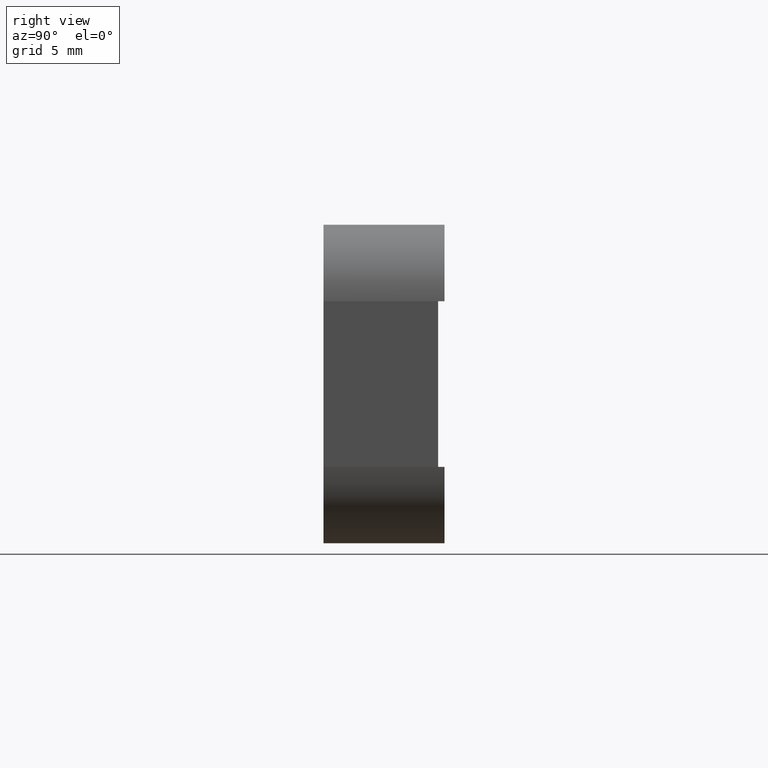
[diagram: clean part render]
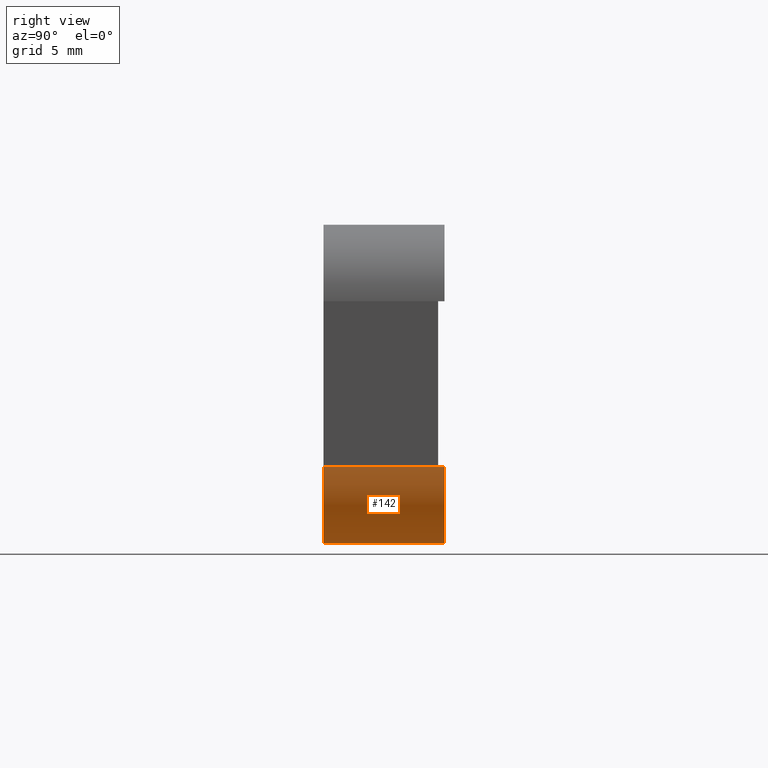
[diagram: same view with one face highlighted and labeled with its STEP entity id]
A machine part, right view. The second image highlights one B-rep face of the part: STEP entity #142.
In plain terms, the highlighted cylindrical surface (partial cylindrical patch) has radius 6 mm, axis along (0, -1, 0).
Its self-contained STEP definition (entity closure, byte-faithful):
#5 = EDGE_CURVE ( 'NONE', #703, #691, #655, .T. ) ;
#13 = EDGE_CURVE ( 'NONE', #698, #705, #647, .T. ) ;
#21 = EDGE_CURVE ( 'NONE', #700, #703, #636, .T. ) ;
#30 = AXIS2_PLACEMENT_3D ( 'NONE', #87, #112, #83 ) ;
#45 = AXIS2_PLACEMENT_3D ( 'NONE', #126, #123, #116 ) ;
#56 = EDGE_CURVE ( 'NONE', #705, #700, #593, .T. ) ;
#75 = EDGE_CURVE ( 'NONE', #691, #698, #568, .T. ) ;
#83 = DIRECTION ( 'NONE',  ( 1.156482317317871300E-015, 0.0000000000000000000, 1.000000000000000000 ) ) ;
#87 = CARTESIAN_POINT ( 'NONE',  ( 44.79999999999998300, 0.0000000000000000000, -19.00000000000000400 ) ) ;
#105 = CARTESIAN_POINT ( 'NONE',  ( 50.79999999999998300, 9.500000000000000000, -19.00000000000000700 ) ) ;
#108 = DIRECTION ( 'NONE',  ( -0.0000000000000000000, 1.000000000000000000, -0.0000000000000000000 ) ) ;
#112 = DIRECTION ( 'NONE',  ( -0.0000000000000000000, -1.000000000000000000, -0.0000000000000000000 ) ) ;
#116 = DIRECTION ( 'NONE',  ( 0.0000000000000000000, 0.0000000000000000000, 1.000000000000000000 ) ) ;
#123 = DIRECTION ( 'NONE',  ( 0.0000000000000000000, 1.000000000000000000, 0.0000000000000000000 ) ) ;
#126 = CARTESIAN_POINT ( 'NONE',  ( 44.79999999999998300, 9.500000000000000000, -19.00000000000000400 ) ) ;
#142 = ADVANCED_FACE ( 'NONE', ( #553 ), #544, .T. ) ;
#169 = CARTESIAN_POINT ( 'NONE',  ( 50.79999999999999700, 9.000000000000000000, -19.00000000000000400 ) ) ;
#175 = CARTESIAN_POINT ( 'NONE',  ( 50.79999999999998300, 9.500000000000000000, -19.00000000000000400 ) ) ;
#177 = CARTESIAN_POINT ( 'NONE',  ( 44.79999999999998300, 0.0000000000000000000, -25.00000000000000000 ) ) ;
#180 = CARTESIAN_POINT ( 'NONE',  ( 50.79999999999998300, 0.0000000000000000000, -19.00000000000000700 ) ) ;
#182 = CARTESIAN_POINT ( 'NONE',  ( 44.79999999999998300, 9.500000000000000000, -25.00000000000000000 ) ) ;
#230 = EDGE_LOOP ( 'NONE', ( #272, #271, #270, #269, #268 ) ) ;
#268 = ORIENTED_EDGE ( 'NONE', *, *, #13, .F. ) ;
#269 = ORIENTED_EDGE ( 'NONE', *, *, #56, .F. ) ;
#270 = ORIENTED_EDGE ( 'NONE', *, *, #21, .F. ) ;
#271 = ORIENTED_EDGE ( 'NONE', *, *, #5, .F. ) ;
#272 = ORIENTED_EDGE ( 'NONE', *, *, #75, .F. ) ;
#391 = DIRECTION ( 'NONE',  ( 0.0000000000000000000, -1.000000000000000000, 0.0000000000000000000 ) ) ;
#397 = CARTESIAN_POINT ( 'NONE',  ( 44.79999999999998300, 9.500000000000000000, -25.00000000000000000 ) ) ;
#401 = CARTESIAN_POINT ( 'NONE',  ( 50.79999999999999700, 9.000000000000000000, -19.00000000000000400 ) ) ;
#431 = DIRECTION ( 'NONE',  ( -0.0000000000000000000, 1.000000000000000000, -0.0000000000000000000 ) ) ;
#454 = DIRECTION ( 'NONE',  ( 0.0000000000000000000, 0.0000000000000000000, -1.000000000000000000 ) ) ;
#471 = DIRECTION ( 'NONE',  ( 0.0000000000000000000, -1.000000000000000000, 0.0000000000000000000 ) ) ;
#487 = CARTESIAN_POINT ( 'NONE',  ( 44.79999999999998300, 9.500000000000000000, -19.00000000000000400 ) ) ;
#544 = CYLINDRICAL_SURFACE ( 'NONE', #764, 5.999999999999998200 ) ;
#553 = FACE_OUTER_BOUND ( 'NONE', #230, .T. ) ;
#566 = VECTOR ( 'NONE', #431, 1000.000000000000000 ) ;
#568 = LINE ( 'NONE', #401, #566 ) ;
#591 = VECTOR ( 'NONE', #391, 1000.000000000000000 ) ;
#593 = LINE ( 'NONE', #397, #591 ) ;
#636 = CIRCLE ( 'NONE', #30, 6.000000000000000000 ) ;
#647 = CIRCLE ( 'NONE', #45, 6.000000000000000000 ) ;
#654 = VECTOR ( 'NONE', #108, 1000.000000000000000 ) ;
#655 = LINE ( 'NONE', #105, #654 ) ;
#691 = VERTEX_POINT ( 'NONE', #169 ) ;
#698 = VERTEX_POINT ( 'NONE', #175 ) ;
#700 = VERTEX_POINT ( 'NONE', #177 ) ;
#703 = VERTEX_POINT ( 'NONE', #180 ) ;
#705 = VERTEX_POINT ( 'NONE', #182 ) ;
#764 = AXIS2_PLACEMENT_3D ( 'NONE', #487, #471, #454 ) ;